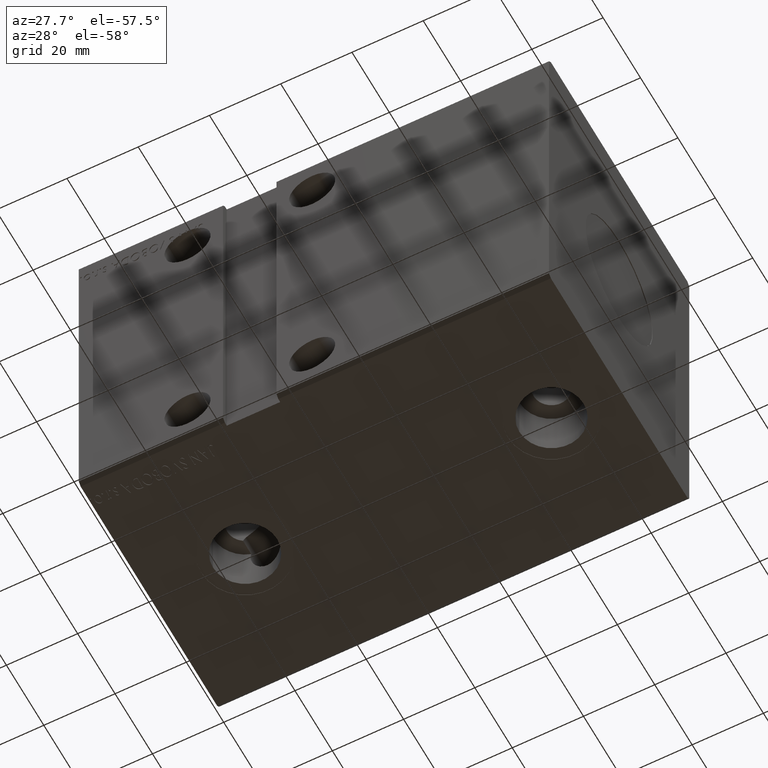
[diagram: clean part render]
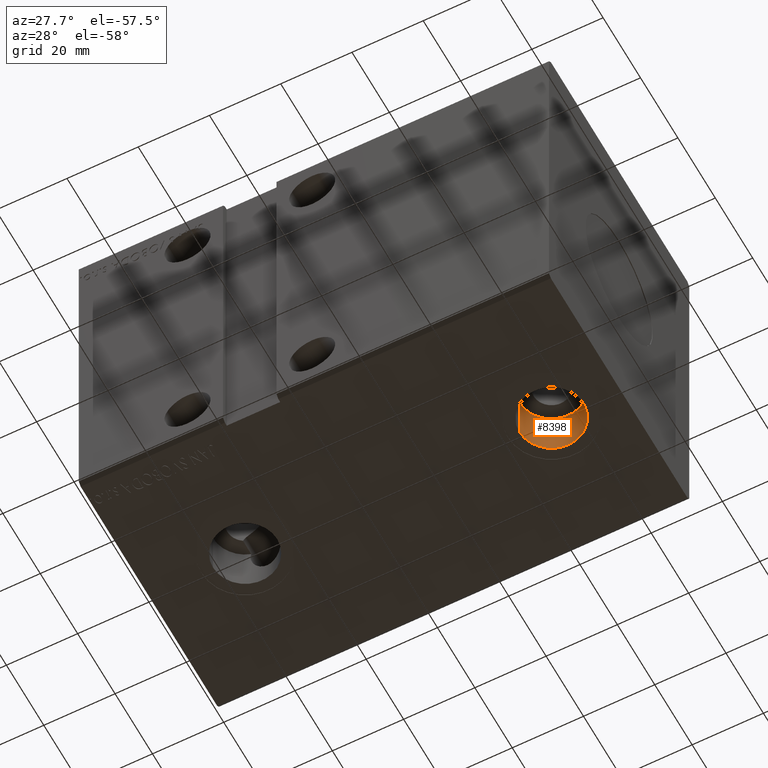
[diagram: same view with one face highlighted and labeled with its STEP entity id]
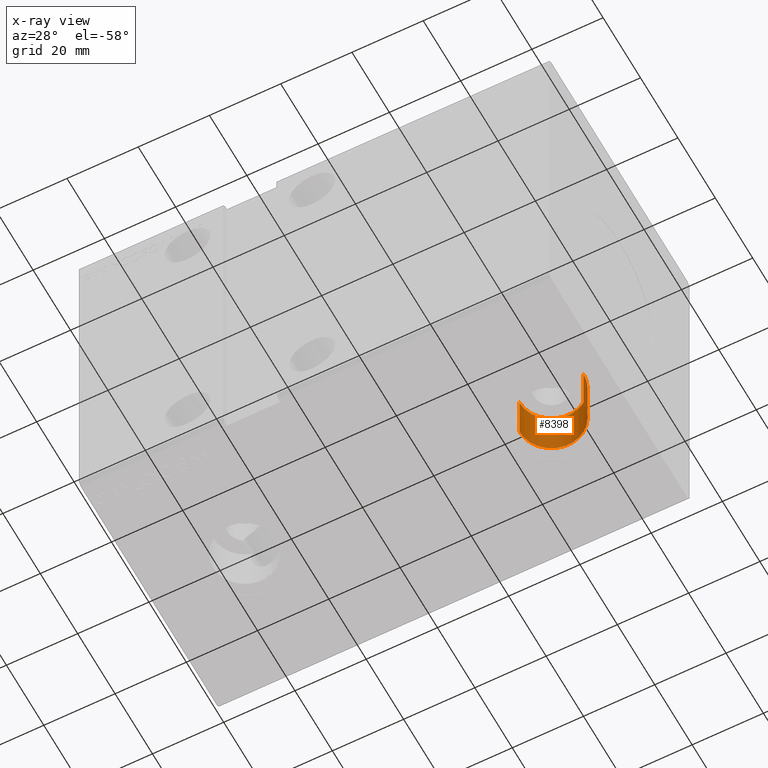
[diagram: x-ray of the same camera — body ghosted, the highlighted face saturated]
A machine part, auxiliary view. The second image highlights one B-rep face of the part: STEP entity #8398.
The next image is the same camera in x-ray: the body ghosted, the highlighted face saturated — about 0% of this face is hidden behind the body in this view.
In plain terms, the highlighted cylindrical surface (edge-blend (fillet) strip) has radius 9 mm, axis along (-0, -0, -1).
Its self-contained STEP definition (entity closure, byte-faithful):
#216 = DIRECTION ( 'NONE',  ( -0.000000000000000000, -0.000000000000000000, -1.000000000000000000 ) ) ;
#539 = ORIENTED_EDGE ( 'NONE', *, *, #20521, .F. ) ;
#599 = VECTOR ( 'NONE', #30699, 1000.000000000000000 ) ;
#2126 = VECTOR ( 'NONE', #216, 1000.000000000000000 ) ;
#2677 = CIRCLE ( 'NONE', #35110, 8.999999999999994671 ) ;
#3922 = DIRECTION ( 'NONE',  ( -1.000000000000000000, 0.000000000000000000, 0.000000000000000000 ) ) ;
#4306 = ORIENTED_EDGE ( 'NONE', *, *, #36260, .F. ) ;
#8238 = DIRECTION ( 'NONE',  ( -0.000000000000000000, -0.000000000000000000, -1.000000000000000000 ) ) ;
#8398 = ADVANCED_FACE ( 'NONE', ( #17177 ), #39173, .F. ) ;
#9722 = LINE ( 'NONE', #25906, #2126 ) ;
#10133 = CARTESIAN_POINT ( 'NONE',  ( 113.0000000000000000, -1.338083489554506112E-14, -49.89999999999999858 ) ) ;
#10163 = CARTESIAN_POINT ( 'NONE',  ( 122.0000000000000000, -1.227865277631244321E-14, -36.29999999999999716 ) ) ;
#10576 = EDGE_LOOP ( 'NONE', ( #4306, #539, #10832, #23919 ) ) ;
#10832 = ORIENTED_EDGE ( 'NONE', *, *, #13081, .T. ) ;
#10939 = CARTESIAN_POINT ( 'NONE',  ( 113.0000000000000000, -1.338083489554506112E-14, -36.29999999999999716 ) ) ;
#11093 = DIRECTION ( 'NONE',  ( 0.000000000000000000, 0.000000000000000000, -1.000000000000000000 ) ) ;
#11477 = VERTEX_POINT ( 'NONE', #11899 ) ;
#11559 = DIRECTION ( 'NONE',  ( -1.000000000000000000, 0.000000000000000000, 0.000000000000000000 ) ) ;
#11899 = CARTESIAN_POINT ( 'NONE',  ( 122.0000000000000000, -1.227865277631244321E-14, -49.89999999999999858 ) ) ;
#13081 = EDGE_CURVE ( 'NONE', #30519, #19981, #18053, .T. ) ;
#14004 = DIRECTION ( 'NONE',  ( -1.000000000000000000, 0.000000000000000000, 0.000000000000000000 ) ) ;
#17177 = FACE_OUTER_BOUND ( 'NONE', #10576, .T. ) ;
#18053 = LINE ( 'NONE', #27792, #599 ) ;
#19981 = VERTEX_POINT ( 'NONE', #32371 ) ;
#20521 = EDGE_CURVE ( 'NONE', #30519, #28848, #36989, .T. ) ;
#23919 = ORIENTED_EDGE ( 'NONE', *, *, #30927, .T. ) ;
#25208 = AXIS2_PLACEMENT_3D ( 'NONE', #10939, #8238, #11559 ) ;
#25906 = CARTESIAN_POINT ( 'NONE',  ( 122.0000000000000000, -1.227865277631244321E-14, -36.29999999999999716 ) ) ;
#27792 = CARTESIAN_POINT ( 'NONE',  ( 104.0000000000000142, -1.338083489554506112E-14, -36.29999999999999716 ) ) ;
#28848 = VERTEX_POINT ( 'NONE', #10163 ) ;
#29696 = AXIS2_PLACEMENT_3D ( 'NONE', #32483, #32881, #14004 ) ;
#29723 = CARTESIAN_POINT ( 'NONE',  ( 104.0000000000000142, -1.338083489554506112E-14, -36.29999999999999716 ) ) ;
#30519 = VERTEX_POINT ( 'NONE', #29723 ) ;
#30699 = DIRECTION ( 'NONE',  ( -0.000000000000000000, -0.000000000000000000, -1.000000000000000000 ) ) ;
#30927 = EDGE_CURVE ( 'NONE', #19981, #11477, #2677, .T. ) ;
#32371 = CARTESIAN_POINT ( 'NONE',  ( 104.0000000000000142, -1.338083489554506112E-14, -49.89999999999999858 ) ) ;
#32483 = CARTESIAN_POINT ( 'NONE',  ( 113.0000000000000000, -1.338083489554506112E-14, -36.29999999999999716 ) ) ;
#32881 = DIRECTION ( 'NONE',  ( 0.000000000000000000, 0.000000000000000000, -1.000000000000000000 ) ) ;
#35110 = AXIS2_PLACEMENT_3D ( 'NONE', #10133, #11093, #3922 ) ;
#36260 = EDGE_CURVE ( 'NONE', #28848, #11477, #9722, .T. ) ;
#36989 = CIRCLE ( 'NONE', #29696, 8.999999999999994671 ) ;
#39173 = CYLINDRICAL_SURFACE ( 'NONE', #25208, 8.999999999999994671 ) ;